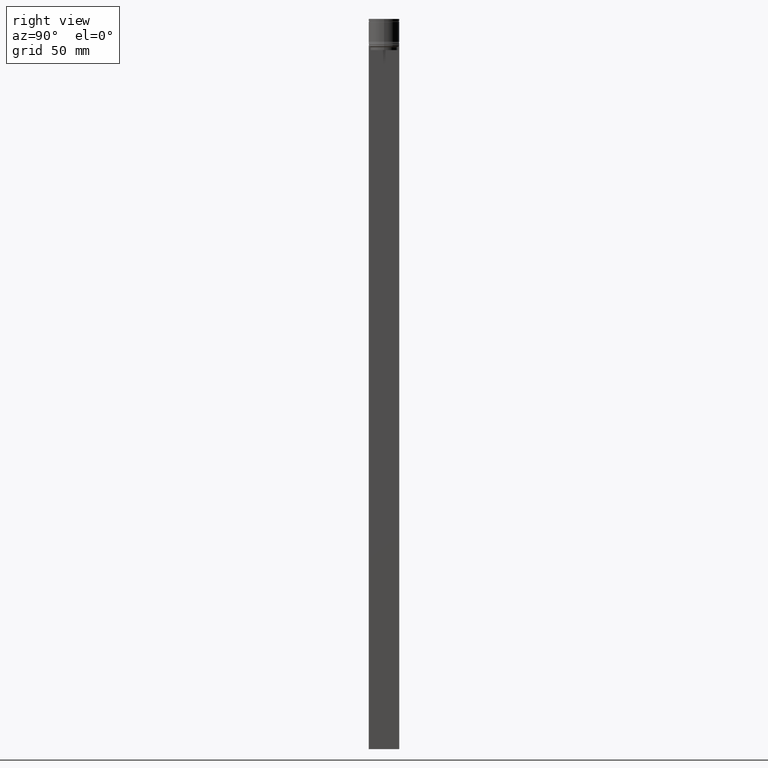
[diagram: clean part render]
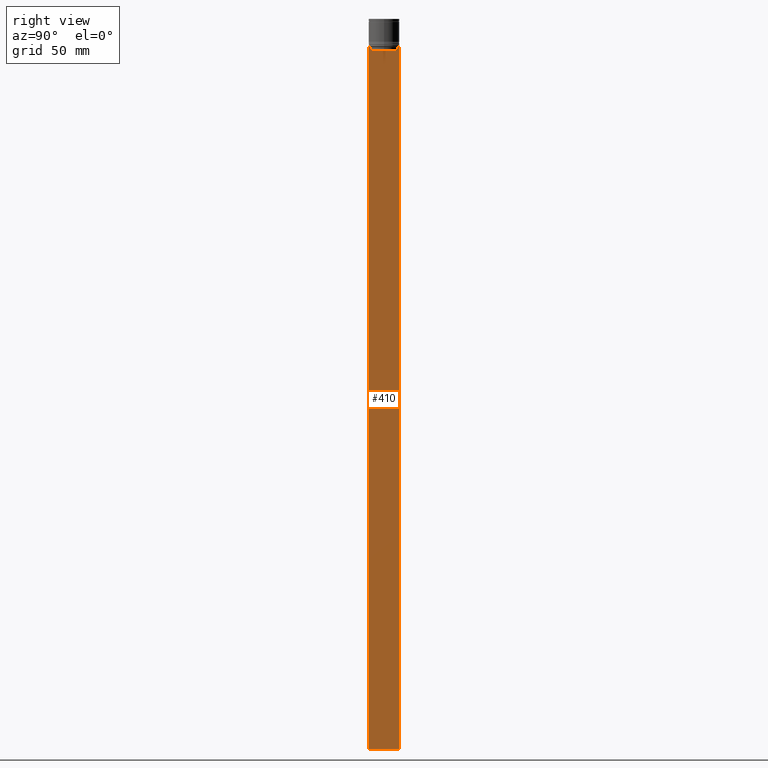
[diagram: same view with one face highlighted and labeled with its STEP entity id]
A machine part, right view. The second image highlights one B-rep face of the part: STEP entity #410.
In plain terms, the highlighted planar face has unit normal (-1, 0, 0).
Its self-contained STEP definition (entity closure, byte-faithful):
#6 = EDGE_CURVE ( 'NONE', #223, #1565, #479, .T. ) ;
#10 = VERTEX_POINT ( 'NONE', #967 ) ;
#20 = EDGE_CURVE ( 'NONE', #1249, #10, #486, .T. ) ;
#27 = VECTOR ( 'NONE', #1667, 1000.000000000000000 ) ;
#30 = LINE ( 'NONE', #1135, #1784 ) ;
#77 = VERTEX_POINT ( 'NONE', #1518 ) ;
#82 = CARTESIAN_POINT ( 'NONE',  ( 0.5000000000000000000, 11.38902980942626897, -22.50000000000000000 ) ) ;
#104 = VECTOR ( 'NONE', #799, 1000.000000000000000 ) ;
#146 = CARTESIAN_POINT ( 'NONE',  ( 0.5000000000000000000, -11.38902980942626897, -22.50000000000000000 ) ) ;
#151 = ORIENTED_EDGE ( 'NONE', *, *, #20, .T. ) ;
#183 = DIRECTION ( 'NONE',  ( 0.000000000000000000, -1.000000000000000000, 0.000000000000000000 ) ) ;
#189 = VECTOR ( 'NONE', #693, 1000.000000000000000 ) ;
#223 = VERTEX_POINT ( 'NONE', #295 ) ;
#271 = EDGE_CURVE ( 'NONE', #77, #1304, #1094, .T. ) ;
#290 = EDGE_CURVE ( 'NONE', #671, #1488, #1100, .T. ) ;
#292 = DIRECTION ( 'NONE',  ( 0.000000000000000000, -1.000000000000000000, 0.000000000000000000 ) ) ;
#295 = CARTESIAN_POINT ( 'NONE',  ( 0.5000000000000000000, 12.38991525394746596, -22.50000000000000000 ) ) ;
#313 = EDGE_CURVE ( 'NONE', #1089, #1376, #1906, .T. ) ;
#369 = LINE ( 'NONE', #1050, #27 ) ;
#404 = CARTESIAN_POINT ( 'NONE',  ( 0.5000000000000000000, 10.88852607105297032, -22.99999999999999645 ) ) ;
#408 = DIRECTION ( 'NONE',  ( 0.000000000000000000, 0.000000000000000000, -1.000000000000000000 ) ) ;
#410 = ADVANCED_FACE ( 'NONE', ( #2075 ), #661, .F. ) ;
#417 = ORIENTED_EDGE ( 'NONE', *, *, #1587, .T. ) ;
#479 = LINE ( 'NONE', #1498, #189 ) ;
#486 = LINE ( 'NONE', #2014, #1748 ) ;
#509 = CARTESIAN_POINT ( 'NONE',  ( 0.5000000000000000000, 11.38902980942626897, -22.50000000000000000 ) ) ;
#544 = CARTESIAN_POINT ( 'NONE',  ( 0.5000000000000000000, 12.50000000000000711, -596.4999999999998863 ) ) ;
#583 = B_SPLINE_CURVE_WITH_KNOTS ( 'NONE', 3,
 ( #82, #1347, #1707, #1505 ),
 .UNSPECIFIED., .F., .F.,
 ( 4, 4 ),
 ( 0.01935560801904635808, 0.02006307108468587813 ),
 .UNSPECIFIED. ) ;
#589 = ORIENTED_EDGE ( 'NONE', *, *, #687, .T. ) ;
#661 = PLANE ( 'NONE',  #1041 ) ;
#671 = VERTEX_POINT ( 'NONE', #928 ) ;
#680 = CARTESIAN_POINT ( 'NONE',  ( 0.5000000000000000000, -12.49999999999999289, 2.519992006393609874 ) ) ;
#683 = ORIENTED_EDGE ( 'NONE', *, *, #313, .T. ) ;
#687 = EDGE_CURVE ( 'NONE', #1488, #1089, #1111, .T. ) ;
#693 = DIRECTION ( 'NONE',  ( 0.000000000000000000, -1.000000000000000000, 0.000000000000000000 ) ) ;
#775 = CARTESIAN_POINT ( 'NONE',  ( 0.5000000000000000000, -11.22219891450653151, -22.66667035398018726 ) ) ;
#779 = ORIENTED_EDGE ( 'NONE', *, *, #1653, .T. ) ;
#799 = DIRECTION ( 'NONE',  ( 0.000000000000000000, -1.000000000000000000, 0.000000000000000000 ) ) ;
#807 = CARTESIAN_POINT ( 'NONE',  ( 0.5000000000000000000, -11.38902980942626897, -22.50000000000000000 ) ) ;
#869 = DIRECTION ( 'NONE',  ( 0.000000000000000000, 0.000000000000000000, -1.000000000000000000 ) ) ;
#904 = CARTESIAN_POINT ( 'NONE',  ( 0.5000000000000000000, 12.50000000000000711, -22.50000000000000000 ) ) ;
#928 = CARTESIAN_POINT ( 'NONE',  ( 0.5000000000000000000, -10.88852607105297032, -22.99999999999999645 ) ) ;
#939 = LINE ( 'NONE', #1113, #1555 ) ;
#955 = CARTESIAN_POINT ( 'NONE',  ( 0.5000000000000000000, -10.88852607105297032, -22.99999999999999645 ) ) ;
#958 = LINE ( 'NONE', #1390, #104 ) ;
#967 = CARTESIAN_POINT ( 'NONE',  ( 0.5000000000000000000, 10.88852607105296855, -25.50000000000000000 ) ) ;
#976 = VECTOR ( 'NONE', #183, 1000.000000000000000 ) ;
#1000 = EDGE_CURVE ( 'NONE', #10, #1341, #958, .T. ) ;
#1025 = ORIENTED_EDGE ( 'NONE', *, *, #6, .T. ) ;
#1032 = CARTESIAN_POINT ( 'NONE',  ( 0.5000000000000000000, -10.88852607105296855, -25.50000000000000000 ) ) ;
#1041 = AXIS2_PLACEMENT_3D ( 'NONE', #680, #2086, #1960 ) ;
#1050 = CARTESIAN_POINT ( 'NONE',  ( 0.5000000000000000000, -12.49999999999999289, 2.519992006393609874 ) ) ;
#1055 = ORIENTED_EDGE ( 'NONE', *, *, #1829, .T. ) ;
#1058 = EDGE_CURVE ( 'NONE', #1311, #1304, #1218, .T. ) ;
#1089 = VERTEX_POINT ( 'NONE', #1934 ) ;
#1094 = LINE ( 'NONE', #2035, #1348 ) ;
#1100 = B_SPLINE_CURVE_WITH_KNOTS ( 'NONE', 3,
 ( #955, #1761, #775, #146 ),
 .UNSPECIFIED., .F., .F.,
 ( 4, 4 ),
 ( 0.05041323384703231408, 0.05112713601261610619 ),
 .UNSPECIFIED. ) ;
#1111 = LINE ( 'NONE', #1132, #976 ) ;
#1113 = CARTESIAN_POINT ( 'NONE',  ( 0.5000000000000000000, -12.49999999999999289, -22.50000000000000000 ) ) ;
#1116 = CARTESIAN_POINT ( 'NONE',  ( 0.5000000000000000000, -12.49999999999999289, -22.50000000000000000 ) ) ;
#1117 = CARTESIAN_POINT ( 'NONE',  ( 0.5000000000000000000, -12.49999999999999289, -22.50000000000000000 ) ) ;
#1132 = CARTESIAN_POINT ( 'NONE',  ( 0.5000000000000000000, -12.49999999999999289, -22.50000000000000000 ) ) ;
#1135 = CARTESIAN_POINT ( 'NONE',  ( 0.5000000000000000000, -10.88852607105297032, 0.000000000000000000 ) ) ;
#1166 = DIRECTION ( 'NONE',  ( -0.000000000000000000, -0.000000000000000000, 1.000000000000000000 ) ) ;
#1187 = VECTOR ( 'NONE', #408, 1000.000000000000000 ) ;
#1218 = LINE ( 'NONE', #1429, #1187 ) ;
#1249 = VERTEX_POINT ( 'NONE', #404 ) ;
#1304 = VERTEX_POINT ( 'NONE', #544 ) ;
#1311 = VERTEX_POINT ( 'NONE', #904 ) ;
#1341 = VERTEX_POINT ( 'NONE', #1032 ) ;
#1347 = CARTESIAN_POINT ( 'NONE',  ( 0.5000000000000000000, 11.22219891375843126, -22.66667035472756808 ) ) ;
#1348 = VECTOR ( 'NONE', #1578, 1000.000000000000000 ) ;
#1376 = VERTEX_POINT ( 'NONE', #1117 ) ;
#1382 = VECTOR ( 'NONE', #1776, 1000.000000000000000 ) ;
#1390 = CARTESIAN_POINT ( 'NONE',  ( 0.5000000000000000000, 10.90000000000000924, -25.50000000000000000 ) ) ;
#1414 = ORIENTED_EDGE ( 'NONE', *, *, #1058, .F. ) ;
#1429 = CARTESIAN_POINT ( 'NONE',  ( 0.5000000000000000000, 12.50000000000000711, 2.519992006393609874 ) ) ;
#1480 = ORIENTED_EDGE ( 'NONE', *, *, #271, .T. ) ;
#1488 = VERTEX_POINT ( 'NONE', #807 ) ;
#1498 = CARTESIAN_POINT ( 'NONE',  ( 0.5000000000000000000, -12.49999999999999289, -22.50000000000000000 ) ) ;
#1505 = CARTESIAN_POINT ( 'NONE',  ( 0.5000000000000000000, 10.88852607105297032, -22.99999999999999645 ) ) ;
#1518 = CARTESIAN_POINT ( 'NONE',  ( 0.5000000000000000000, -12.49999999999999289, -596.4999999999998863 ) ) ;
#1555 = VECTOR ( 'NONE', #292, 1000.000000000000000 ) ;
#1565 = VERTEX_POINT ( 'NONE', #509 ) ;
#1578 = DIRECTION ( 'NONE',  ( 0.000000000000000000, 1.000000000000000000, 0.000000000000000000 ) ) ;
#1580 = ORIENTED_EDGE ( 'NONE', *, *, #1696, .T. ) ;
#1587 = EDGE_CURVE ( 'NONE', #1341, #671, #30, .T. ) ;
#1653 = EDGE_CURVE ( 'NONE', #1376, #77, #369, .T. ) ;
#1667 = DIRECTION ( 'NONE',  ( 0.000000000000000000, 0.000000000000000000, -1.000000000000000000 ) ) ;
#1696 = EDGE_CURVE ( 'NONE', #1565, #1249, #583, .T. ) ;
#1707 = CARTESIAN_POINT ( 'NONE',  ( 0.5000000000000000000, 11.05536450345590715, -22.83333719074559554 ) ) ;
#1739 = EDGE_LOOP ( 'NONE', ( #1025, #1580, #151, #2051, #417, #2074, #589, #683, #779, #1480, #1414, #1055 ) ) ;
#1748 = VECTOR ( 'NONE', #869, 1000.000000000000000 ) ;
#1761 = CARTESIAN_POINT ( 'NONE',  ( 0.5000000000000000000, -11.05536450423839412, -22.83333718996392747 ) ) ;
#1776 = DIRECTION ( 'NONE',  ( 0.000000000000000000, -1.000000000000000000, 0.000000000000000000 ) ) ;
#1784 = VECTOR ( 'NONE', #1166, 1000.000000000000000 ) ;
#1829 = EDGE_CURVE ( 'NONE', #1311, #223, #939, .T. ) ;
#1906 = LINE ( 'NONE', #1116, #1382 ) ;
#1934 = CARTESIAN_POINT ( 'NONE',  ( 0.5000000000000000000, -12.38991525394746596, -22.50000000000000000 ) ) ;
#1960 = DIRECTION ( 'NONE',  ( 0.000000000000000000, 0.000000000000000000, 1.000000000000000000 ) ) ;
#2014 = CARTESIAN_POINT ( 'NONE',  ( 0.5000000000000000000, 10.88852607105297032, 0.000000000000000000 ) ) ;
#2035 = CARTESIAN_POINT ( 'NONE',  ( 0.5000000000000000000, -12.49999999999999289, -596.4999999999998863 ) ) ;
#2051 = ORIENTED_EDGE ( 'NONE', *, *, #1000, .T. ) ;
#2074 = ORIENTED_EDGE ( 'NONE', *, *, #290, .T. ) ;
#2075 = FACE_OUTER_BOUND ( 'NONE', #1739, .T. ) ;
#2086 = DIRECTION ( 'NONE',  ( -1.000000000000000000, 0.000000000000000000, 0.000000000000000000 ) ) ;